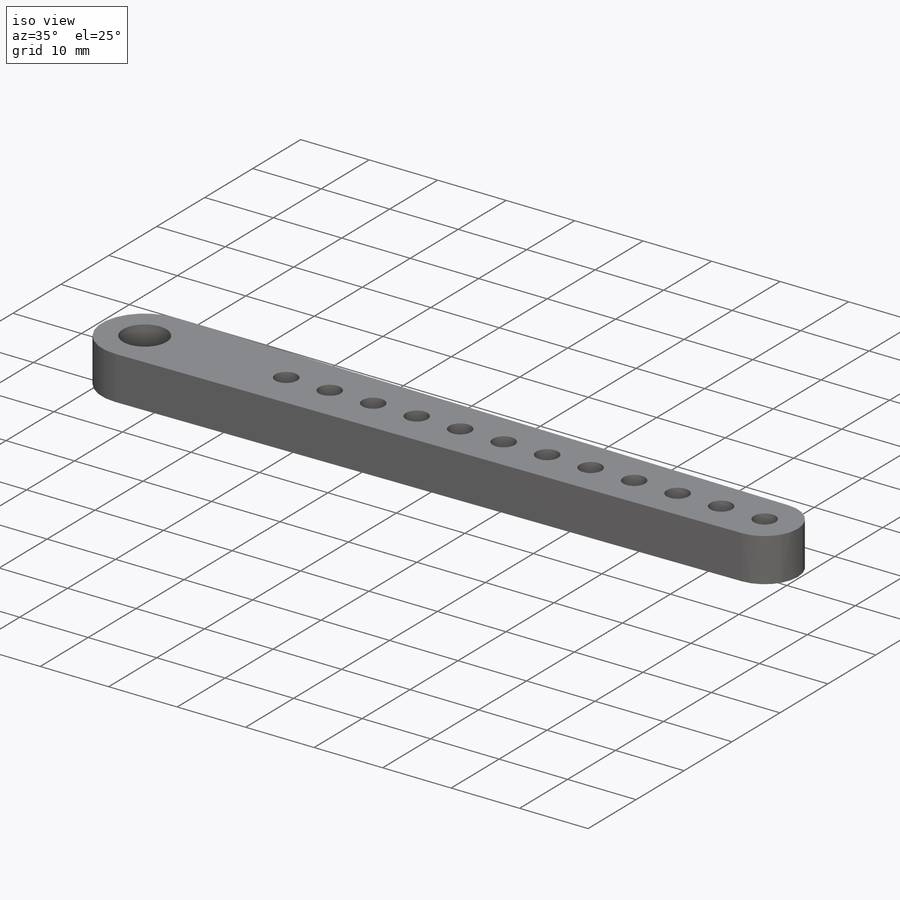
[diagram: iso view]
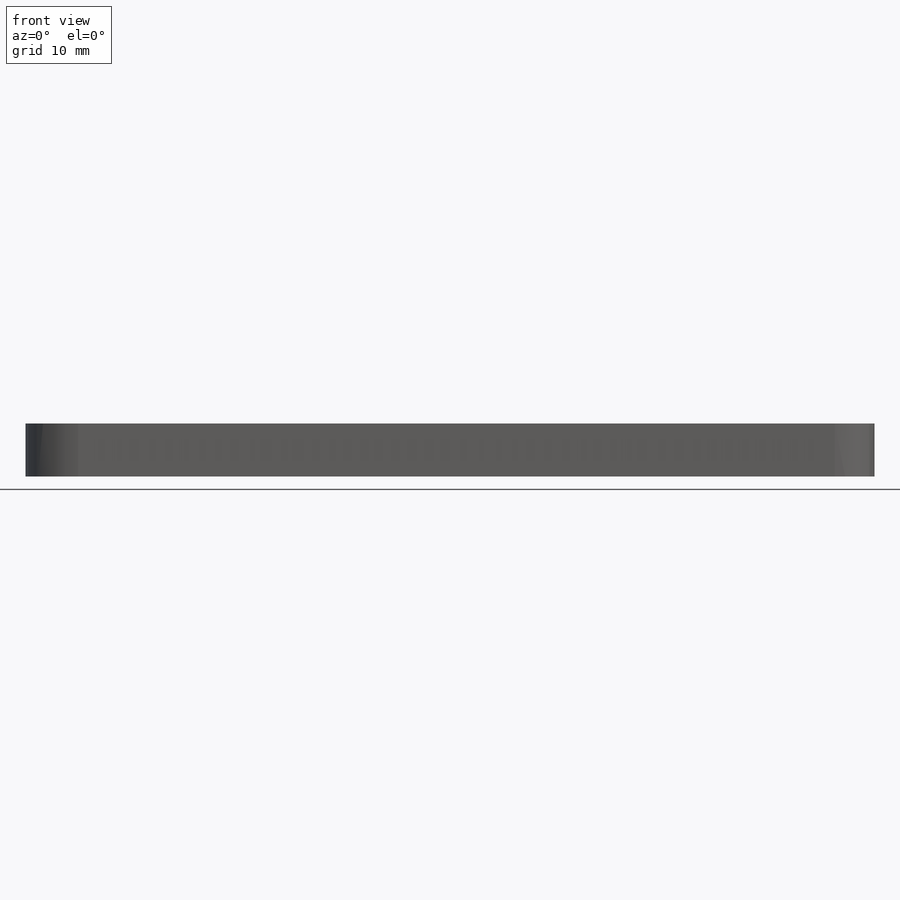
[diagram: front view]
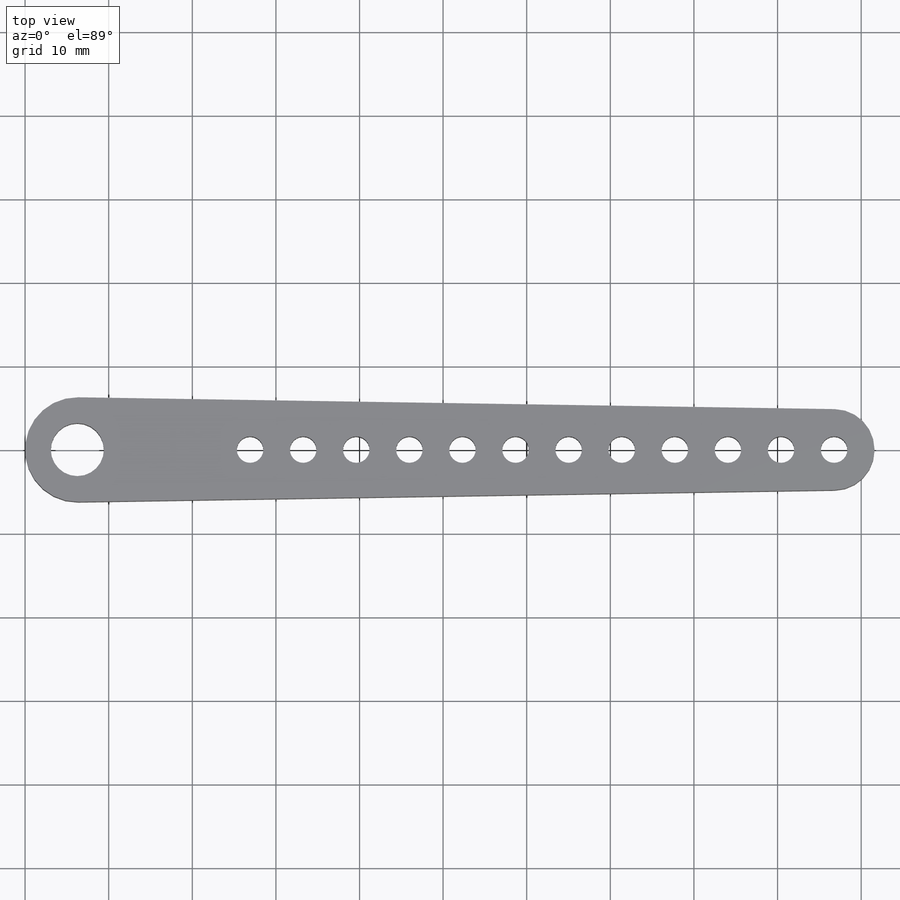
[diagram: top view]
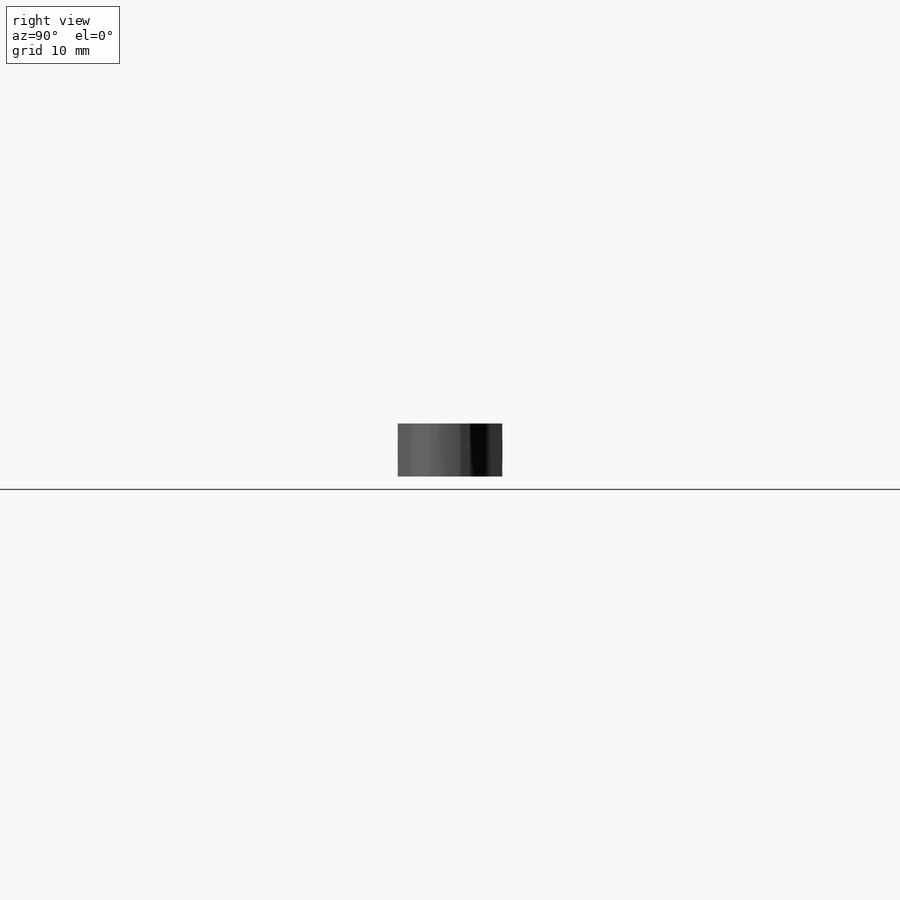
[diagram: right view]
SOLIDWORKS PART (.sldprt)
format: sldprt  version: not decoded by parser v0  size: 193,536 bytes
history: native  units: mm
features: sketch x4, fillet x2, cut_extrude x2, material x1, extrude x1, mirror x1, pattern_linear x1 (+11 scaffold rows collapsed)
feature tree (23):
  scaffold x11  (default folders/planes/origin — collapsed)
  material  "Material <not specified>"
  sketch  "Sketch2"  dims[D1=12.7mm D2=9.525mm D3=101.6mm]
  extrude  "Boss-Extrude1"  Depth=6.35mm
  mirror  "Mirror1"
  fillet  "Fillet1"  [1 undecoded]
  fillet  "Fillet3"  [1 undecoded]
  sketch  "Sketch3"  dims[D1=6.35mm D2=3.175mm]
  cut_extrude  "Cut-Extrude1"  [1 undecoded]
  sketch  "Sketch4"
  sketch  "Sketch5"  dims[D1=6.35mm]
  cut_extrude  "Cut-Extrude2"  [1 undecoded]
  pattern_linear  "LPattern1"  Count1=11 Count2=1 Spacing1=6.35mm Spacing2=50mm
decode coverage: 5 of 11 modeling features carry decoded parameters
note: 4 parameter values undecoded
summary: no parameter record found for 4 features
note: suppression state not decoded; provenance and decode notes live in map.json
